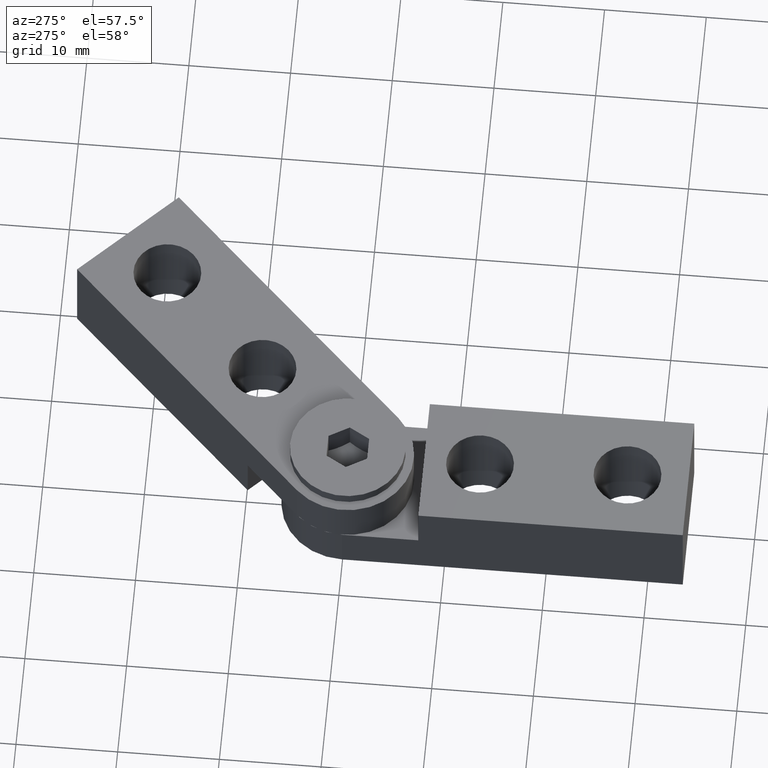
[diagram: clean part render]
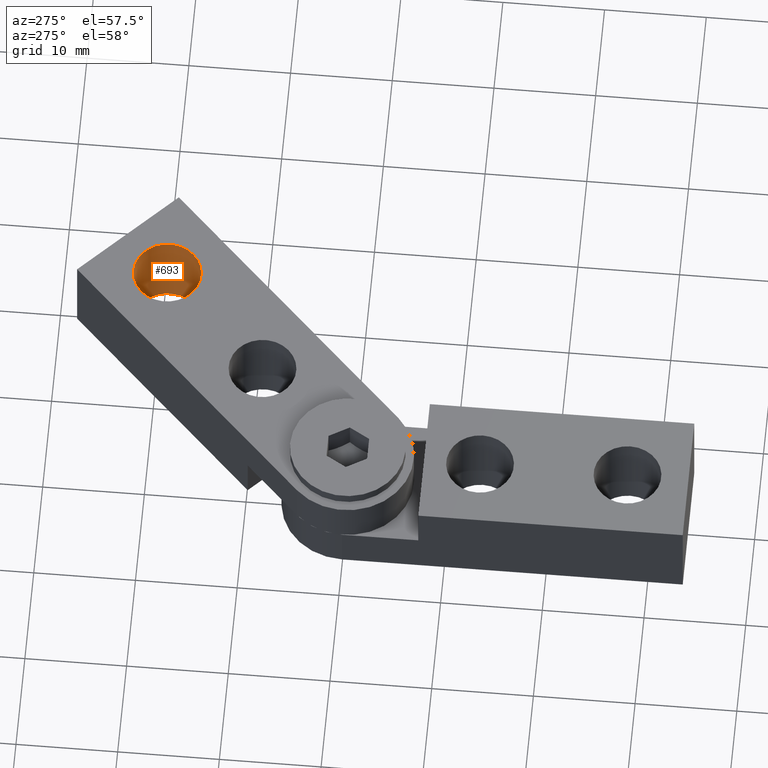
[diagram: same view with one face highlighted and labeled with its STEP entity id]
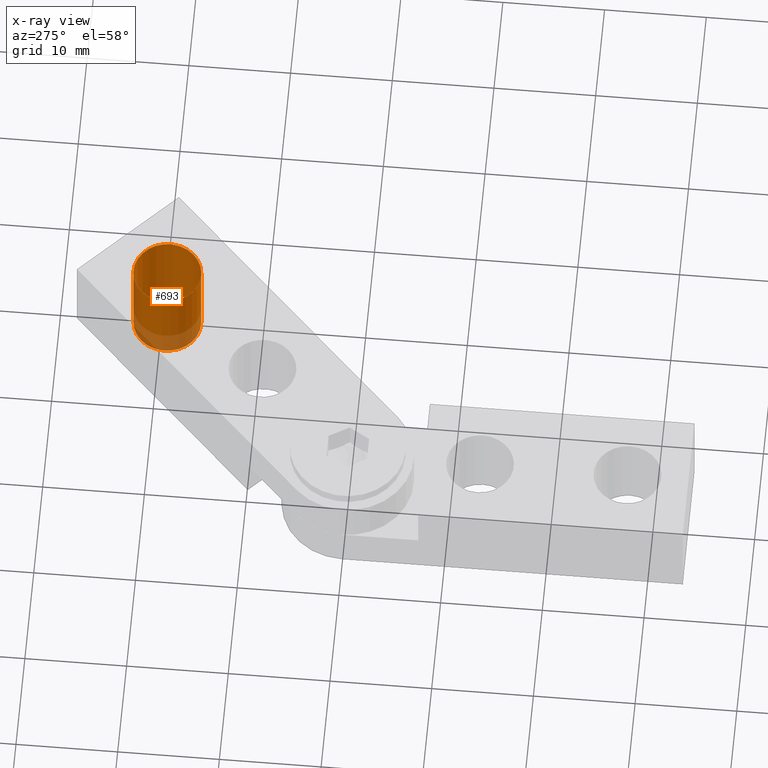
[diagram: x-ray of the same camera — body ghosted, the highlighted face saturated]
A machine part, auxiliary view. The second image highlights one B-rep face of the part: STEP entity #693.
The next image is the same camera in x-ray: the body ghosted, the highlighted face saturated — about 16% of this face is hidden behind the body in this view.
In plain terms, the highlighted cylindrical surface (bore or boss wall) has radius 3.3235 mm, axis along (0, 0, -1).
Its self-contained STEP definition (entity closure, byte-faithful):
#98=FACE_OUTER_BOUND('',#143,.T.);
#143=EDGE_LOOP('',(#568,#569,#570,#571,#572));
#199=LINE('',#1191,#255);
#255=VECTOR('',#984,3.3235);
#297=CIRCLE('',#829,3.3235);
#298=CIRCLE('',#830,3.3235);
#299=CIRCLE('',#833,3.3235);
#347=VERTEX_POINT('',#1179);
#348=VERTEX_POINT('',#1180);
#351=VERTEX_POINT('',#1190);
#427=EDGE_CURVE('',#347,#348,#297,.T.);
#428=EDGE_CURVE('',#348,#347,#298,.T.);
#432=EDGE_CURVE('',#348,#351,#199,.T.);
#433=EDGE_CURVE('',#351,#351,#299,.T.);
#568=ORIENTED_EDGE('',*,*,#427,.F.);
#569=ORIENTED_EDGE('',*,*,#428,.F.);
#570=ORIENTED_EDGE('',*,*,#432,.T.);
#571=ORIENTED_EDGE('',*,*,#433,.F.);
#572=ORIENTED_EDGE('',*,*,#432,.F.);
#671=CYLINDRICAL_SURFACE('',#832,3.3235);
#693=ADVANCED_FACE('',(#98),#671,.F.);
#829=AXIS2_PLACEMENT_3D('',#1181,#973,#974);
#830=AXIS2_PLACEMENT_3D('',#1182,#975,#976);
#832=AXIS2_PLACEMENT_3D('',#1189,#982,#983);
#833=AXIS2_PLACEMENT_3D('',#1192,#985,#986);
#973=DIRECTION('center_axis',(0.,0.,-1.));
#974=DIRECTION('ref_axis',(1.,0.,0.));
#975=DIRECTION('center_axis',(0.,0.,-1.));
#976=DIRECTION('ref_axis',(1.,0.,0.));
#982=DIRECTION('center_axis',(0.,0.,1.));
#983=DIRECTION('ref_axis',(1.,0.,0.));
#984=DIRECTION('',(0.,0.,-1.));
#985=DIRECTION('center_axis',(0.,0.,1.));
#986=DIRECTION('ref_axis',(1.,0.,0.));
#1179=CARTESIAN_POINT('',(3.3235,-27.5,9.));
#1180=CARTESIAN_POINT('',(-3.3235,-27.5,9.));
#1181=CARTESIAN_POINT('Origin',(0.,-27.5,9.));
#1182=CARTESIAN_POINT('Origin',(0.,-27.5,9.));
#1189=CARTESIAN_POINT('Origin',(0.,-27.5,-1.));
#1190=CARTESIAN_POINT('',(-3.3235,-27.5,0.));
#1191=CARTESIAN_POINT('',(-3.3235,-27.5,-1.));
#1192=CARTESIAN_POINT('Origin',(0.,-27.5,0.));